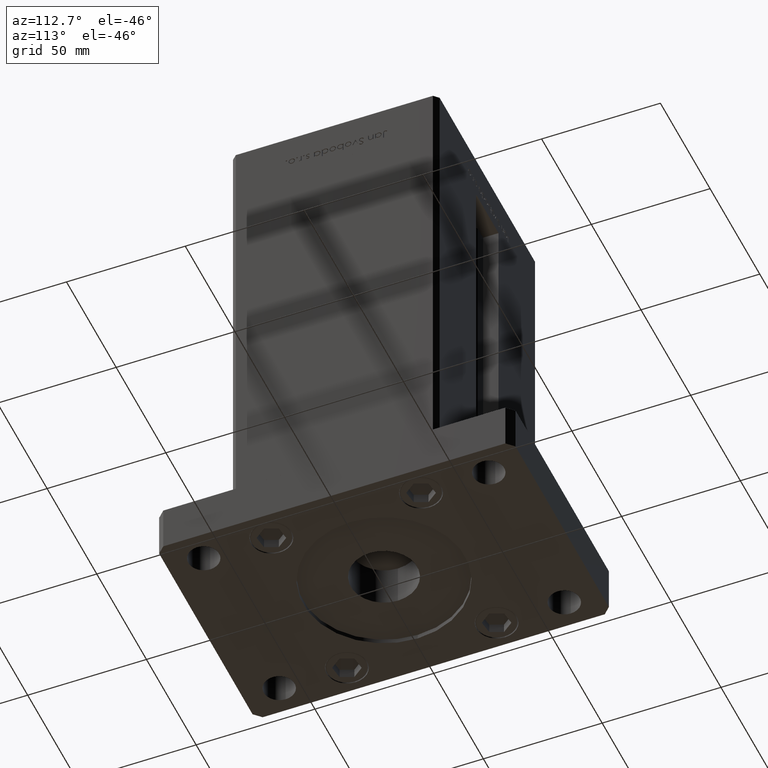
[diagram: clean part render]
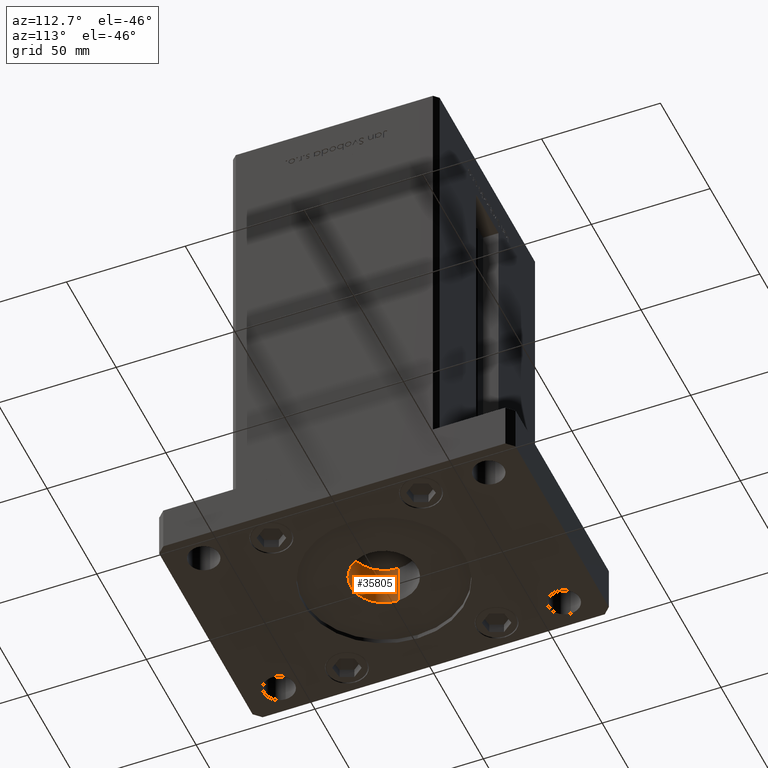
[diagram: same view with one face highlighted and labeled with its STEP entity id]
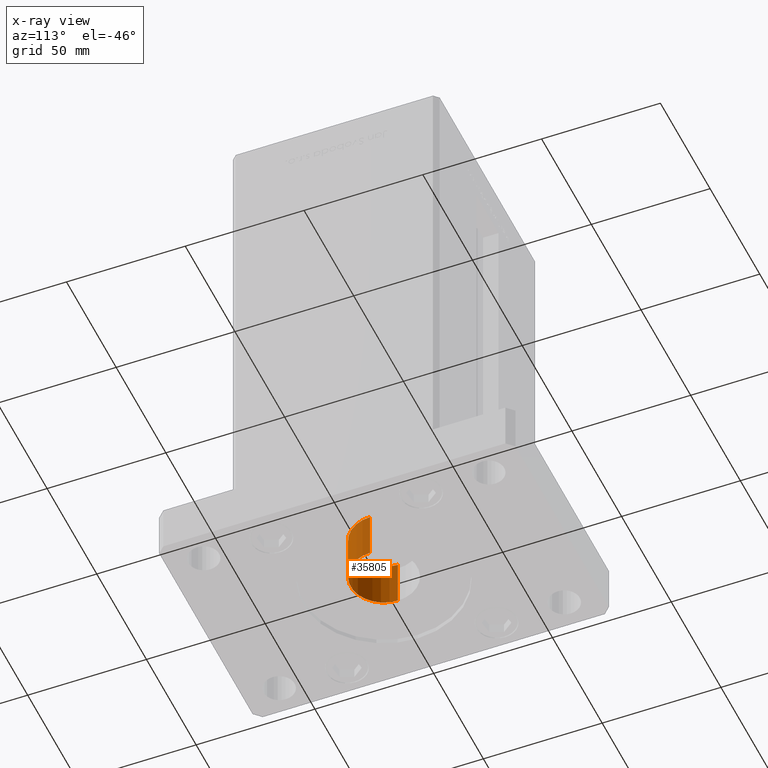
[diagram: x-ray of the same camera — body ghosted, the highlighted face saturated]
A machine part, auxiliary view. The second image highlights one B-rep face of the part: STEP entity #35805.
The next image is the same camera in x-ray: the body ghosted, the highlighted face saturated — about 0% of this face is hidden behind the body in this view.
In plain terms, the highlighted cylindrical surface (edge-blend (fillet) strip) has radius 14 mm, axis along (0, 0, 1).
Its self-contained STEP definition (entity closure, byte-faithful):
#276 = VERTEX_POINT ( 'NONE', #51838 ) ;
#380 = ORIENTED_EDGE ( 'NONE', *, *, #25165, .T. ) ;
#2260 = DIRECTION ( 'NONE',  ( -0.000000000000000000, -0.000000000000000000, 1.000000000000000000 ) ) ;
#3716 = AXIS2_PLACEMENT_3D ( 'NONE', #34837, #2260, #15004 ) ;
#4583 = CARTESIAN_POINT ( 'NONE',  ( 14.00000000000000000, 0.000000000000000000, 0.000000000000000000 ) ) ;
#5411 = CARTESIAN_POINT ( 'NONE',  ( 14.00000000000000000, 0.000000000000000000, 22.00000000000000000 ) ) ;
#5505 = AXIS2_PLACEMENT_3D ( 'NONE', #6283, #22843, #39404 ) ;
#5794 = VERTEX_POINT ( 'NONE', #40009 ) ;
#6283 = CARTESIAN_POINT ( 'NONE',  ( 0.000000000000000000, 0.000000000000000000, 22.00000000000000000 ) ) ;
#7349 = LINE ( 'NONE', #19573, #53430 ) ;
#9102 = VERTEX_POINT ( 'NONE', #5411 ) ;
#10472 = VERTEX_POINT ( 'NONE', #28010 ) ;
#14481 = FACE_OUTER_BOUND ( 'NONE', #37779, .T. ) ;
#15004 = DIRECTION ( 'NONE',  ( 1.000000000000000000, 0.000000000000000000, 0.000000000000000000 ) ) ;
#16189 = VECTOR ( 'NONE', #30632, 1000.000000000000000 ) ;
#16917 = EDGE_CURVE ( 'NONE', #5794, #9102, #27181, .T. ) ;
#19082 = CYLINDRICAL_SURFACE ( 'NONE', #3716, 14.00000000000000000 ) ;
#19573 = CARTESIAN_POINT ( 'NONE',  ( -14.00000000000000000, 1.714505518806294638E-15, 0.000000000000000000 ) ) ;
#22843 = DIRECTION ( 'NONE',  ( 0.000000000000000000, 0.000000000000000000, 1.000000000000000000 ) ) ;
#25165 = EDGE_CURVE ( 'NONE', #10472, #5794, #7349, .T. ) ;
#25747 = ORIENTED_EDGE ( 'NONE', *, *, #53461, .F. ) ;
#27181 = CIRCLE ( 'NONE', #5505, 14.00000000000000000 ) ;
#28010 = CARTESIAN_POINT ( 'NONE',  ( -14.00000000000000000, 1.714505518806294638E-15, 2.000000000000000000 ) ) ;
#30614 = ORIENTED_EDGE ( 'NONE', *, *, #51011, .F. ) ;
#30632 = DIRECTION ( 'NONE',  ( -0.000000000000000000, -0.000000000000000000, 1.000000000000000000 ) ) ;
#33471 = ORIENTED_EDGE ( 'NONE', *, *, #16917, .T. ) ;
#34837 = CARTESIAN_POINT ( 'NONE',  ( 0.000000000000000000, 0.000000000000000000, 0.000000000000000000 ) ) ;
#35333 = AXIS2_PLACEMENT_3D ( 'NONE', #50447, #50996, #51259 ) ;
#35805 = ADVANCED_FACE ( 'NONE', ( #14481 ), #19082, .F. ) ;
#37779 = EDGE_LOOP ( 'NONE', ( #25747, #380, #33471, #30614 ) ) ;
#39404 = DIRECTION ( 'NONE',  ( 1.000000000000000000, 0.000000000000000000, 0.000000000000000000 ) ) ;
#40009 = CARTESIAN_POINT ( 'NONE',  ( -14.00000000000000000, 1.714505518806294638E-15, 22.00000000000000000 ) ) ;
#42589 = LINE ( 'NONE', #4583, #16189 ) ;
#44547 = DIRECTION ( 'NONE',  ( -0.000000000000000000, -0.000000000000000000, 1.000000000000000000 ) ) ;
#50099 = CIRCLE ( 'NONE', #35333, 14.00000000000000000 ) ;
#50447 = CARTESIAN_POINT ( 'NONE',  ( 0.000000000000000000, 0.000000000000000000, 2.000000000000000000 ) ) ;
#50996 = DIRECTION ( 'NONE',  ( -0.000000000000000000, -0.000000000000000000, 1.000000000000000000 ) ) ;
#51011 = EDGE_CURVE ( 'NONE', #276, #9102, #42589, .T. ) ;
#51259 = DIRECTION ( 'NONE',  ( -1.000000000000000000, 0.000000000000000000, 0.000000000000000000 ) ) ;
#51838 = CARTESIAN_POINT ( 'NONE',  ( 14.00000000000000000, 0.000000000000000000, 2.000000000000000000 ) ) ;
#53430 = VECTOR ( 'NONE', #44547, 1000.000000000000000 ) ;
#53461 = EDGE_CURVE ( 'NONE', #10472, #276, #50099, .T. ) ;